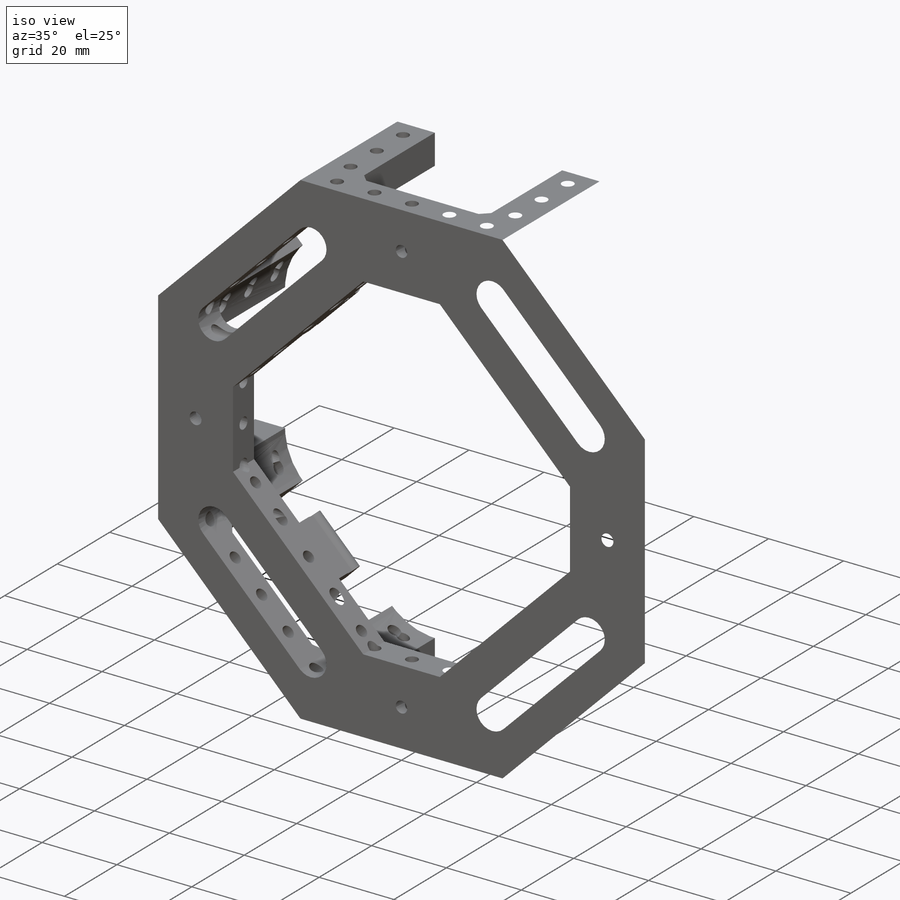
[diagram: iso view]
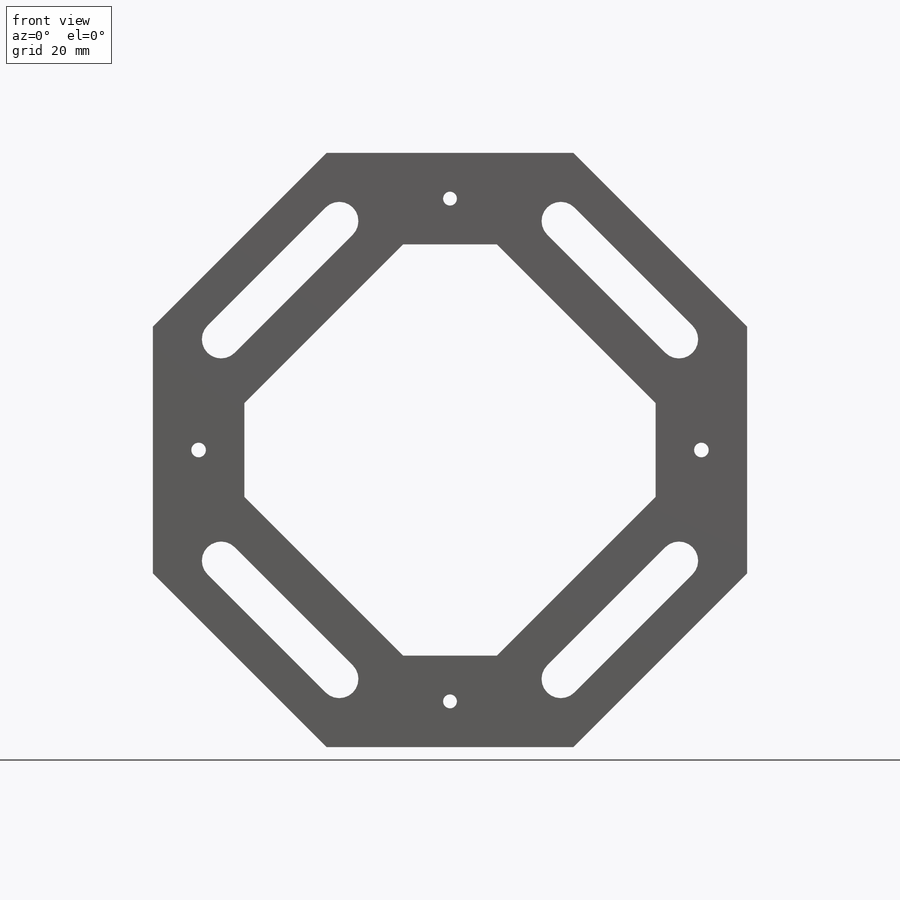
[diagram: front view]
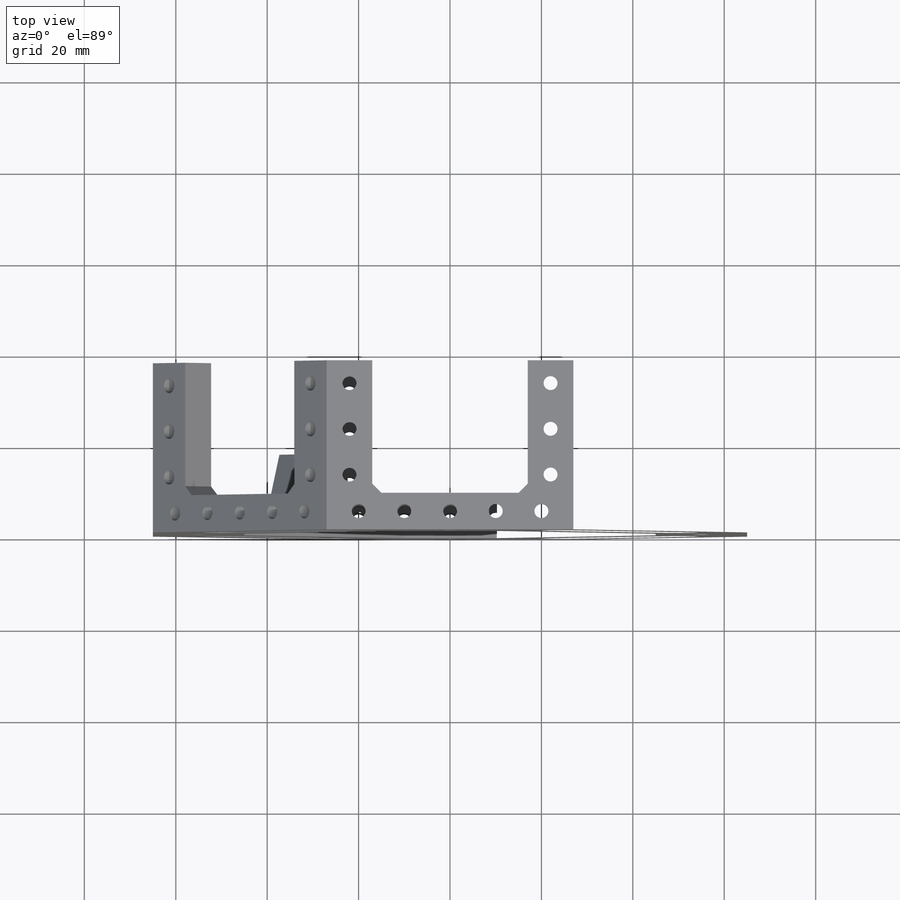
[diagram: top view]
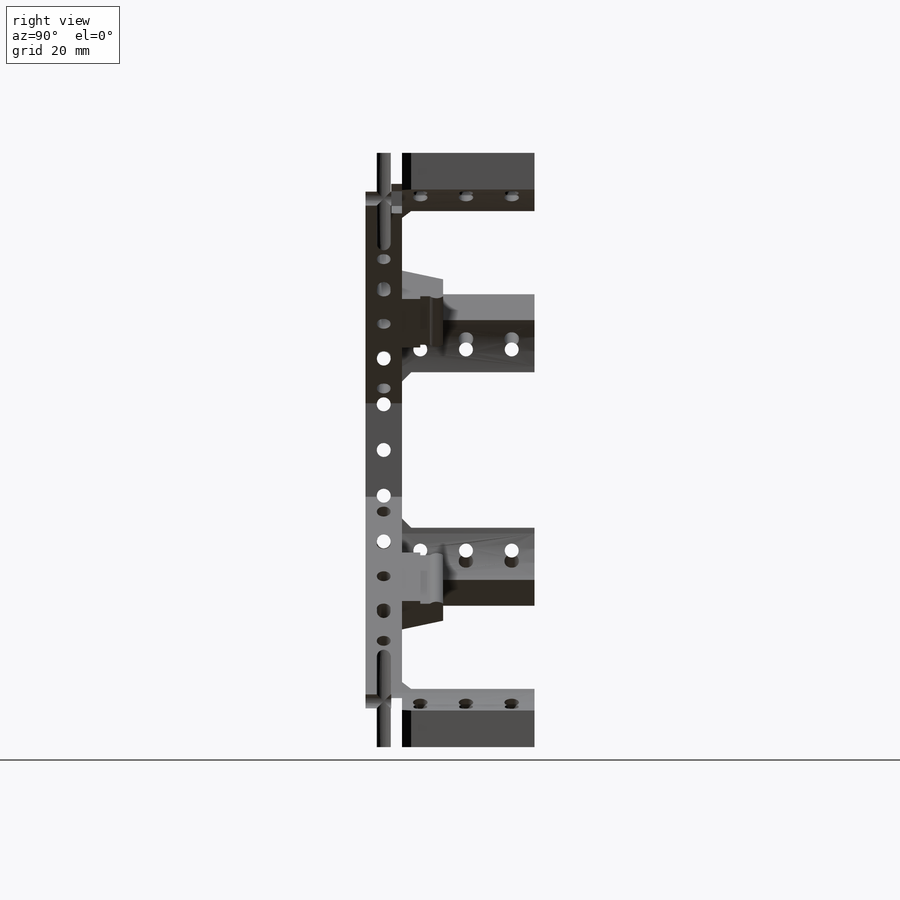
[diagram: right view]
SOLIDWORKS PART (.sldprt)
format: sldprt  version: not decoded by parser v0  size: 1,546,240 bytes
history: native  units: mm
features: sketch x13, cut_extrude x8, extrude x5, plane x3, chamfer x2, mirror x2, material x1 (+9 scaffold rows collapsed)
feature tree (43):
  scaffold x9  (default folders/planes/origin — collapsed)
  material  "Matériau <non spécifié>"
  plane  "Plan de face"
  plane  "Plan de dessus"
  plane  "Plan de droite"
  sketch  "Esquisse2"  dims[c1.D1=27.0mm c1.D2=17.0mm c1.D3=17.0mm c2.D3=135.0deg c2.D4=15.0mm c2.D5=20.0mm c2.D6=~25.583926mm c3.D6=~177.524976deg c4.D6=~25.583926mm c5.D6=~2.475024deg c5.D7=17.0mm c6.D6=15.0mm c6.D7=65.0mm c6.D2=26.0mm]
  extrude  "Boss.-Extru.1"  Depth=8mm
  sketch  "Esquisse3"  dims[D1=39.2mm D2=45.0mm D3=15.0mm D4=17.1mm]
  extrude  "Boss.-Extru.2"  Depth=4mm
  sketch  "Esquisse4"  dims[D1=40.05mm]
  extrude  "Boss.-Extru.3"  Depth=5mm
  sketch  "Esquisse5"  dims[c1.D2=~2.040472mm c1.D1=2.1mm c2.D2=1.4mm]
  extrude  "Boss.-Extru.4"  Depth=15mm
  sketch  "Esquisse6"  dims[D1=1.6mm D2=1.525mm D3=10.0mm D4=10.0mm]
  cut_extrude  "Enlèv. mat.-Extru.1"  Depth=15mm
  sketch  "Esquisse7"  dims[c1.D3=3.2mm c1.D4=3.2mm c1.D5=3.2mm c1.D6=3.2mm c1.D7=3.2mm c1.D8=3.2mm c1.D9=3.2mm c1.D10=3.2mm c1.D11=3.2mm c1.D12=3.2mm c1.D13=3.2mm c1.D1=8.0mm c1.D2=17.0mm c2.D6=5.0mm c2.D7=4.0mm c2.D8=4.0mm c2.D9=5.0mm c2.D10=5.0mm c2.D11=4.0mm c2.D12=4.0mm c2.D13=5.0mm]
  sketch  "Esquisse8"  dims[D1=4.2mm D2=12.5mm D3=14.0mm D4=14.0mm]
  cut_extrude  "Enlèv. mat.-Extru.2"  Depth=15mm
  extrude  "Boss.-Extru.5"  Depth=29mm
  chamfer  "Chanfrein1"  Distance=3mm
  chamfer  "Chanfrein2"  Distance=2mm Angle=45deg
  sketch  "Esquisse12"  dims[c1.D1=3.2mm c1.D3=3.2mm c1.D4=3.2mm c1.D5=3.2mm c1.D2=3.2mm c2.D3=3.05mm c2.D2=10.0mm c3.D3=20.0mm c3.D4=5.0mm c3.D5=5.0mm c3.D2=5.0mm c3.D1=3.0]
  cut_extrude  "Enlèv. mat.-Extru.4"  Depth=10mm
  sketch  "Esquisse14"  dims[c1.D1=3.05mm c1.D3=3.2mm c1.D2=5.0mm c2.D3=5.0mm c2.D4=3.0]
  cut_extrude  "Enlèv. mat.-Extru.5"  Depth=10mm
  sketch  "Esquisse15"  dims[c1.D1=~1.900383mm c1.D4=3.2mm c1.D6=3.2mm c1.D7=3.2mm c1.D8=3.2mm c1.D9=3.2mm c1.D11=3.05mm c2.D1=4.0mm c2.D5=5.0mm c2.D6=5.0mm c2.D8=5.0mm c2.D9=5.0mm c2.D2=3.0 c2.D3=3.0 c2.D10=3.0]
  cut_extrude  "Enlèv. mat.-Extru.6"  Depth=30mm
  sketch  "Esquisse16"  dims[D1=3.05mm D2=4.0mm D3=3.0]
  cut_extrude  "Enlèv. mat.-Extru.7"  Depth=30mm
  sketch  "Esquisse17"  dims[D1=3.05mm D2=4.0mm D3=3.0]
  cut_extrude  "Enlèv. mat.-Extru.8"  Depth=30mm
  sketch  "Esquisse18"  dims[D1=2.8mm D2=2.8mm]
  cut_extrude  "Enlèv. mat.-Extru.10"  Depth=2.35mm
  mirror  "Symétrie1"
  mirror  "Symétrie2"
decode coverage: 28 of 30 modeling features carry decoded parameters
note: ~ marks probable driven/reference dimensions
note: suppression state not decoded; provenance and decode notes live in map.json
